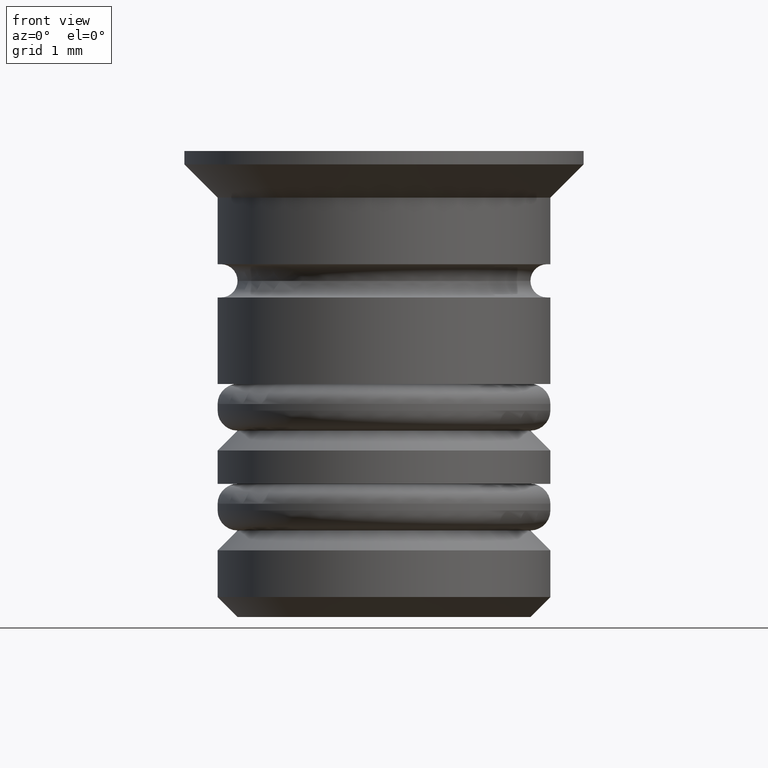
[diagram: clean part render]
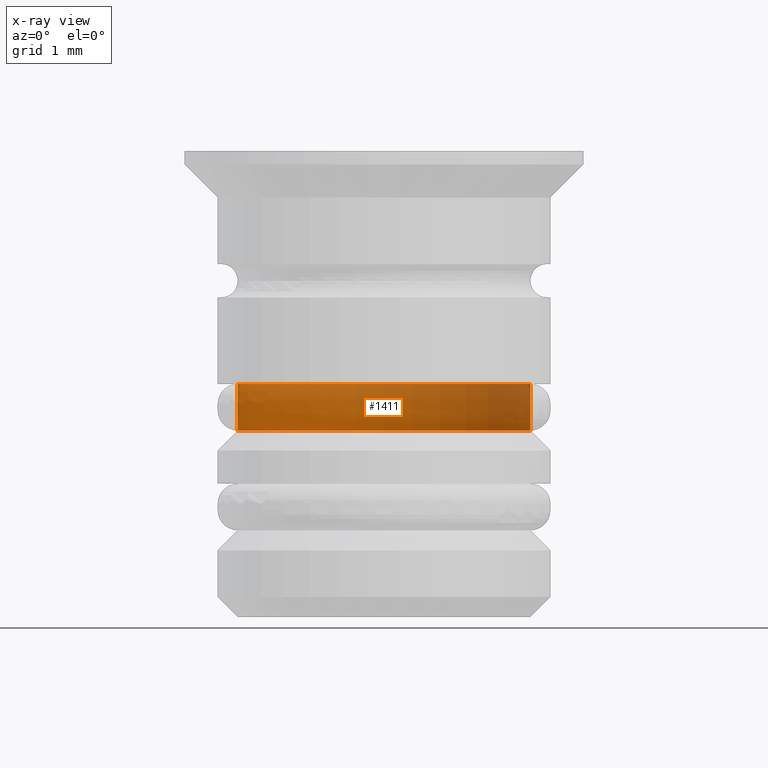
[diagram: x-ray — body ghosted, one internal face saturated and labeled with its STEP entity id]
A machine part, front view, then the same camera in x-ray: the body is ghosted and one INTERNAL B-rep face — a face not visible from any outside direction — is saturated and labeled: STEP entity #1411.
In plain terms, the highlighted cylindrical surface (partial cylindrical patch) has radius 2.2 mm, axis along (-0, -0, 1).
Its self-contained STEP definition (entity closure, byte-faithful):
#26 = DIRECTION ( 'NONE',  ( -0.000000000000000000, -0.000000000000000000, 1.000000000000000000 ) ) ;
#37 = AXIS2_PLACEMENT_3D ( 'NONE', #1414, #26, #262 ) ;
#45 = VECTOR ( 'NONE', #1712, 1000.000000000000000 ) ;
#64 = CYLINDRICAL_SURFACE ( 'NONE', #785, 2.200000000000002398 ) ;
#71 = DIRECTION ( 'NONE',  ( 1.000000000000000000, 0.000000000000000000, 0.000000000000000000 ) ) ;
#112 = CARTESIAN_POINT ( 'NONE',  ( 2.200000000000001954, 0.000000000000000000, -3.500000000000003553 ) ) ;
#160 = VERTEX_POINT ( 'NONE', #354 ) ;
#220 = EDGE_CURVE ( 'NONE', #321, #160, #1243, .T. ) ;
#262 = DIRECTION ( 'NONE',  ( -1.000000000000000000, 0.000000000000000000, 0.000000000000000000 ) ) ;
#306 = VERTEX_POINT ( 'NONE', #1271 ) ;
#321 = VERTEX_POINT ( 'NONE', #860 ) ;
#354 = CARTESIAN_POINT ( 'NONE',  ( -2.200000000000002398, 2.694222958124179965E-16, -4.200000000000010836 ) ) ;
#373 = VECTOR ( 'NONE', #452, 1000.000000000000000 ) ;
#397 = LINE ( 'NONE', #1662, #373 ) ;
#452 = DIRECTION ( 'NONE',  ( -0.000000000000000000, -0.000000000000000000, 1.000000000000000000 ) ) ;
#494 = CIRCLE ( 'NONE', #813, 2.200000000000001954 ) ;
#780 = DIRECTION ( 'NONE',  ( -0.000000000000000000, -0.000000000000000000, 1.000000000000000000 ) ) ;
#785 = AXIS2_PLACEMENT_3D ( 'NONE', #1614, #780, #1061 ) ;
#813 = AXIS2_PLACEMENT_3D ( 'NONE', #1057, #1341, #71 ) ;
#860 = CARTESIAN_POINT ( 'NONE',  ( 2.200000000000002398, 0.000000000000000000, -4.200000000000010836 ) ) ;
#995 = CARTESIAN_POINT ( 'NONE',  ( 2.200000000000002398, 0.000000000000000000, 0.000000000000000000 ) ) ;
#1057 = CARTESIAN_POINT ( 'NONE',  ( 0.000000000000000000, 0.000000000000000000, -3.500000000000003553 ) ) ;
#1061 = DIRECTION ( 'NONE',  ( 1.000000000000000000, 0.000000000000000000, 0.000000000000000000 ) ) ;
#1168 = ORIENTED_EDGE ( 'NONE', *, *, #220, .T. ) ;
#1173 = EDGE_LOOP ( 'NONE', ( #1168, #1533, #1237, #1382 ) ) ;
#1205 = FACE_OUTER_BOUND ( 'NONE', #1173, .T. ) ;
#1237 = ORIENTED_EDGE ( 'NONE', *, *, #1257, .F. ) ;
#1243 = CIRCLE ( 'NONE', #37, 2.200000000000002398 ) ;
#1257 = EDGE_CURVE ( 'NONE', #1800, #306, #494, .T. ) ;
#1271 = CARTESIAN_POINT ( 'NONE',  ( -2.200000000000001954, 2.694222958124179472E-16, -3.500000000000003553 ) ) ;
#1341 = DIRECTION ( 'NONE',  ( -0.000000000000000000, -0.000000000000000000, 1.000000000000000000 ) ) ;
#1342 = EDGE_CURVE ( 'NONE', #160, #306, #397, .T. ) ;
#1382 = ORIENTED_EDGE ( 'NONE', *, *, #1384, .F. ) ;
#1384 = EDGE_CURVE ( 'NONE', #321, #1800, #1699, .T. ) ;
#1411 = ADVANCED_FACE ( 'NONE', ( #1205 ), #64, .T. ) ;
#1414 = CARTESIAN_POINT ( 'NONE',  ( 0.000000000000000000, 0.000000000000000000, -4.200000000000010836 ) ) ;
#1533 = ORIENTED_EDGE ( 'NONE', *, *, #1342, .T. ) ;
#1614 = CARTESIAN_POINT ( 'NONE',  ( 0.000000000000000000, 0.000000000000000000, 0.000000000000000000 ) ) ;
#1662 = CARTESIAN_POINT ( 'NONE',  ( -2.200000000000002398, 2.694222958124179965E-16, 0.000000000000000000 ) ) ;
#1699 = LINE ( 'NONE', #995, #45 ) ;
#1712 = DIRECTION ( 'NONE',  ( -0.000000000000000000, -0.000000000000000000, 1.000000000000000000 ) ) ;
#1800 = VERTEX_POINT ( 'NONE', #112 ) ;